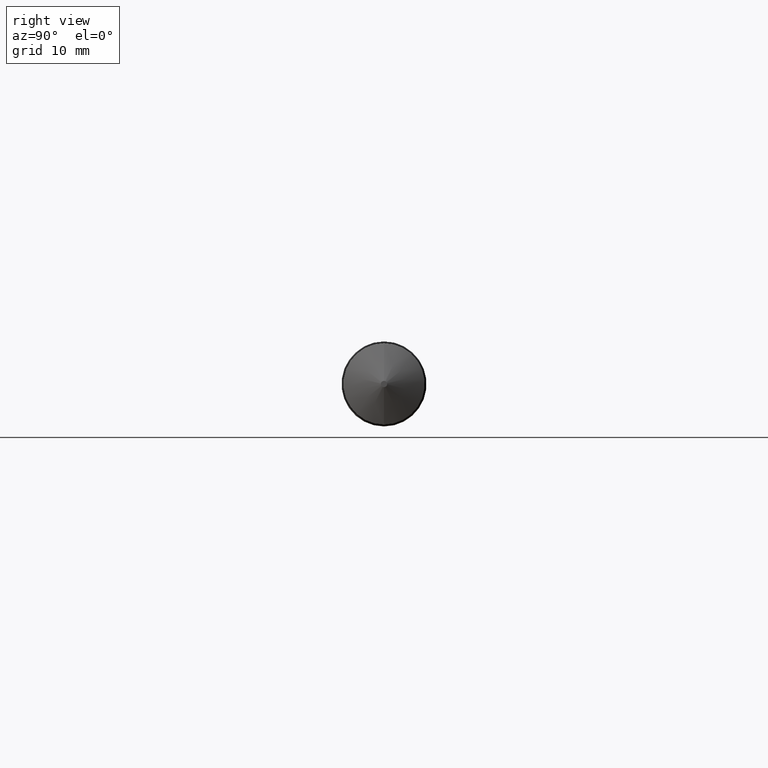
[diagram: clean part render]
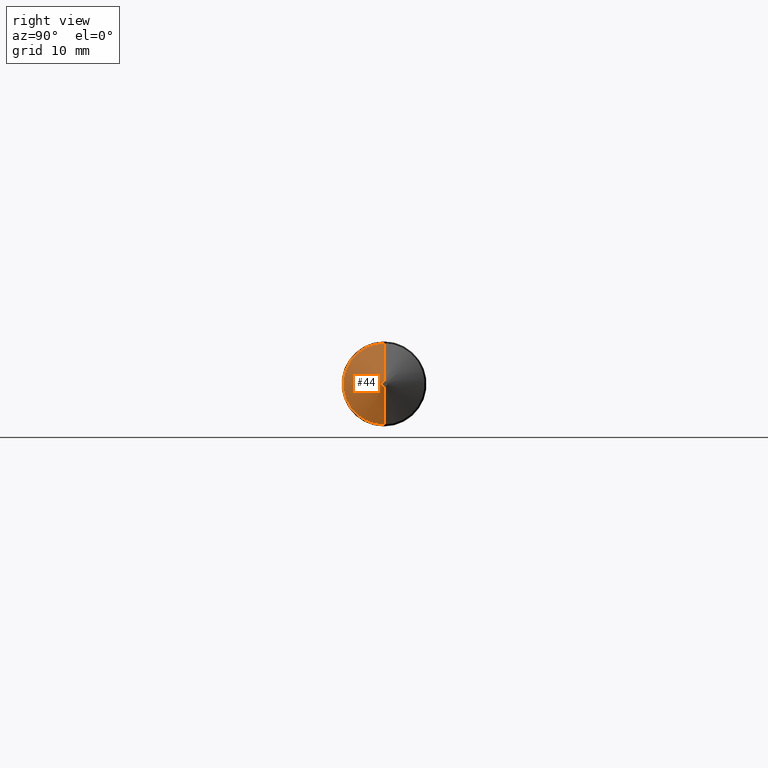
[diagram: same view with one face highlighted and labeled with its STEP entity id]
A machine part, right view. The second image highlights one B-rep face of the part: STEP entity #44.
In plain terms, the highlighted conical surface has half-angle 70 deg.
Its self-contained STEP definition (entity closure, byte-faithful):
#1 = EDGE_CURVE ( 'NONE', #365, #278, #6, .T. ) ;
#6 = LINE ( 'NONE', #199, #132 ) ;
#13 = EDGE_LOOP ( 'NONE', ( #244, #76, #34, #363 ) ) ;
#19 = CONICAL_SURFACE ( 'NONE', #211, 0.01750000000000049780, 1.221730476396032827 ) ;
#20 = CARTESIAN_POINT ( 'NONE',  ( 3.939860237651560126, 0.000000000000000000, 0.000000000000000000 ) ) ;
#34 = ORIENTED_EDGE ( 'NONE', *, *, #197, .T. ) ;
#37 = DIRECTION ( 'NONE',  ( 0.000000000000000000, 0.000000000000000000, -1.000000000000000000 ) ) ;
#44 = ADVANCED_FACE ( 'NONE', ( #268 ), #19, .T. ) ;
#70 = VERTEX_POINT ( 'NONE', #98 ) ;
#76 = ORIENTED_EDGE ( 'NONE', *, *, #92, .F. ) ;
#92 = EDGE_CURVE ( 'NONE', #154, #365, #295, .T. ) ;
#98 = CARTESIAN_POINT ( 'NONE',  ( 3.939860237651560126, 0.000000000000000000, 0.2260000000000005060 ) ) ;
#101 = DIRECTION ( 'NONE',  ( -1.000000000000000000, 0.000000000000000000, 0.000000000000000000 ) ) ;
#104 = AXIS2_PLACEMENT_3D ( 'NONE', #206, #351, #228 ) ;
#111 = VECTOR ( 'NONE', #255, 39.37007874015748143 ) ;
#132 = VECTOR ( 'NONE', #230, 39.37007874015748143 ) ;
#137 = LINE ( 'NONE', #191, #111 ) ;
#154 = VERTEX_POINT ( 'NONE', #282 ) ;
#191 = CARTESIAN_POINT ( 'NONE',  ( 4.015748031496062964, 0.000000000000000000, 0.01750000000000049780 ) ) ;
#197 = EDGE_CURVE ( 'NONE', #154, #70, #137, .T. ) ;
#199 = CARTESIAN_POINT ( 'NONE',  ( 4.015748031496062964, 2.143131898507929234E-18, -0.01750000000000049780 ) ) ;
#206 = CARTESIAN_POINT ( 'NONE',  ( 4.015748031496062964, 0.000000000000000000, 0.000000000000000000 ) ) ;
#211 = AXIS2_PLACEMENT_3D ( 'NONE', #250, #101, #307 ) ;
#228 = DIRECTION ( 'NONE',  ( 0.000000000000000000, 0.000000000000000000, -1.000000000000000000 ) ) ;
#230 = DIRECTION ( 'NONE',  ( -0.3420201433256667145, 1.150791560227851256E-16, -0.9396926207859090940 ) ) ;
#236 = DIRECTION ( 'NONE',  ( 1.000000000000000000, -0.000000000000000000, -0.000000000000000000 ) ) ;
#244 = ORIENTED_EDGE ( 'NONE', *, *, #1, .F. ) ;
#250 = CARTESIAN_POINT ( 'NONE',  ( 4.015748031496062964, 0.000000000000000000, 0.000000000000000000 ) ) ;
#255 = DIRECTION ( 'NONE',  ( -0.3420201433256667145, 0.000000000000000000, 0.9396926207859090940 ) ) ;
#268 = FACE_OUTER_BOUND ( 'NONE', #13, .T. ) ;
#278 = VERTEX_POINT ( 'NONE', #292 ) ;
#282 = CARTESIAN_POINT ( 'NONE',  ( 4.015748031496062964, 0.000000000000000000, 0.01750000000000049780 ) ) ;
#285 = AXIS2_PLACEMENT_3D ( 'NONE', #20, #236, #37 ) ;
#292 = CARTESIAN_POINT ( 'NONE',  ( 3.939860237651560126, 2.767701766073025062E-17, -0.2260000000000005060 ) ) ;
#294 = CARTESIAN_POINT ( 'NONE',  ( 4.015748031496062964, 1.491007477961908473E-17, -0.01750000000000049780 ) ) ;
#295 = CIRCLE ( 'NONE', #104, 0.01750000000000049780 ) ;
#307 = DIRECTION ( 'NONE',  ( 0.000000000000000000, 0.000000000000000000, 1.000000000000000000 ) ) ;
#351 = DIRECTION ( 'NONE',  ( 1.000000000000000000, -0.000000000000000000, -0.000000000000000000 ) ) ;
#360 = CIRCLE ( 'NONE', #285, 0.2260000000000004783 ) ;
#363 = ORIENTED_EDGE ( 'NONE', *, *, #372, .T. ) ;
#365 = VERTEX_POINT ( 'NONE', #294 ) ;
#372 = EDGE_CURVE ( 'NONE', #70, #278, #360, .T. ) ;